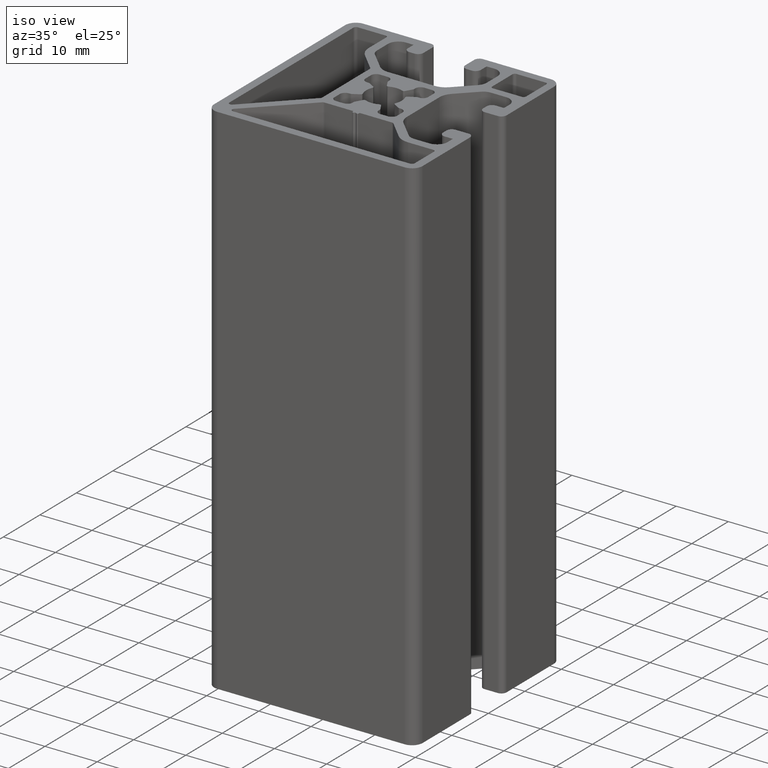
[diagram: clean part render]
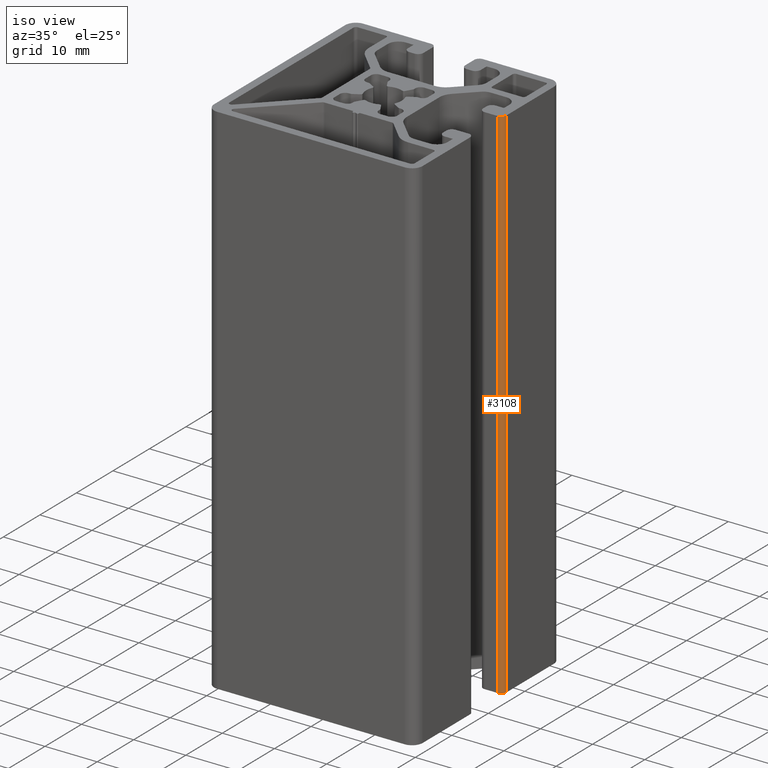
[diagram: same view with one face highlighted and labeled with its STEP entity id]
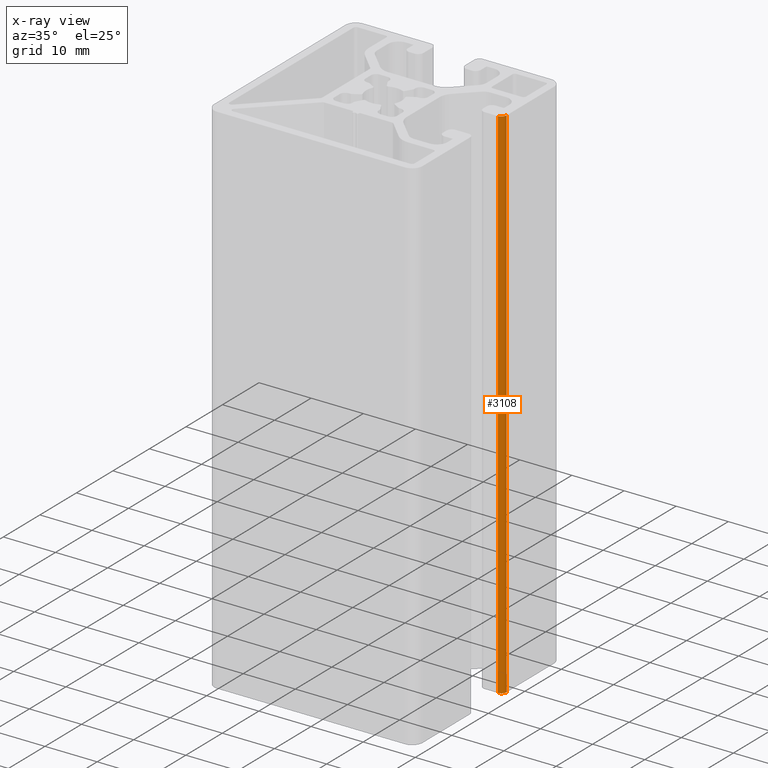
[diagram: x-ray of the same camera — body ghosted, the highlighted face saturated]
A machine part, iso view. The second image highlights one B-rep face of the part: STEP entity #3108.
The next image is the same camera in x-ray: the body ghosted, the highlighted face saturated — about 0% of this face is hidden behind the body in this view.
In plain terms, the highlighted cylindrical surface (edge-blend (fillet) strip) has radius 1 mm, axis along (0, 0, 1).
Its self-contained STEP definition (entity closure, byte-faithful):
#229=FACE_OUTER_BOUND('',#386,.T.);
#386=EDGE_LOOP('',(#2481,#2482,#2483,#2484));
#676=LINE('',#5158,#985);
#677=LINE('',#5162,#986);
#985=VECTOR('',#4221,100.);
#986=VECTOR('',#4224,100.);
#1172=CIRCLE('',#3398,1.);
#1173=CIRCLE('',#3399,1.);
#1454=VERTEX_POINT('',#5154);
#1455=VERTEX_POINT('',#5156);
#1456=VERTEX_POINT('',#5160);
#1457=VERTEX_POINT('',#5161);
#1890=EDGE_CURVE('',#1455,#1454,#676,.T.);
#1891=EDGE_CURVE('',#1456,#1457,#677,.T.);
#1892=EDGE_CURVE('',#1454,#1456,#1172,.T.);
#1893=EDGE_CURVE('',#1457,#1455,#1173,.T.);
#2481=ORIENTED_EDGE('',*,*,#1891,.F.);
#2482=ORIENTED_EDGE('',*,*,#1892,.F.);
#2483=ORIENTED_EDGE('',*,*,#1890,.F.);
#2484=ORIENTED_EDGE('',*,*,#1893,.F.);
#2968=CYLINDRICAL_SURFACE('',#3397,1.);
#3108=ADVANCED_FACE('',(#229),#2968,.T.);
#3397=AXIS2_PLACEMENT_3D('',#5159,#4222,#4223);
#3398=AXIS2_PLACEMENT_3D('',#5163,#4225,#4226);
#3399=AXIS2_PLACEMENT_3D('',#5164,#4227,#4228);
#4221=DIRECTION('',(0.,0.,1.));
#4222=DIRECTION('center_axis',(0.,0.,1.));
#4223=DIRECTION('ref_axis',(-2.2204460492503E-15,1.,0.));
#4224=DIRECTION('',(0.,0.,-1.));
#4225=DIRECTION('center_axis',(0.,0.,1.));
#4226=DIRECTION('ref_axis',(-2.2204460492503E-15,1.,0.));
#4227=DIRECTION('center_axis',(0.,0.,-1.));
#4228=DIRECTION('ref_axis',(-2.2204460492503E-15,1.,0.));
#5154=CARTESIAN_POINT('',(19.000013,3.99999999999997,100.));
#5156=CARTESIAN_POINT('',(19.000013,3.99999999999997,0.));
#5158=CARTESIAN_POINT('',(19.000013,3.99999999999997,0.));
#5159=CARTESIAN_POINT('Origin',(19.000013,4.99999999999998,0.));
#5160=CARTESIAN_POINT('',(20.,4.99490099705906,100.));
#5161=CARTESIAN_POINT('',(20.,4.99490099705906,0.));
#5162=CARTESIAN_POINT('',(20.,4.99490099705906,0.));
#5163=CARTESIAN_POINT('Origin',(19.000013,4.99999999999998,100.));
#5164=CARTESIAN_POINT('Origin',(19.000013,4.99999999999998,0.));